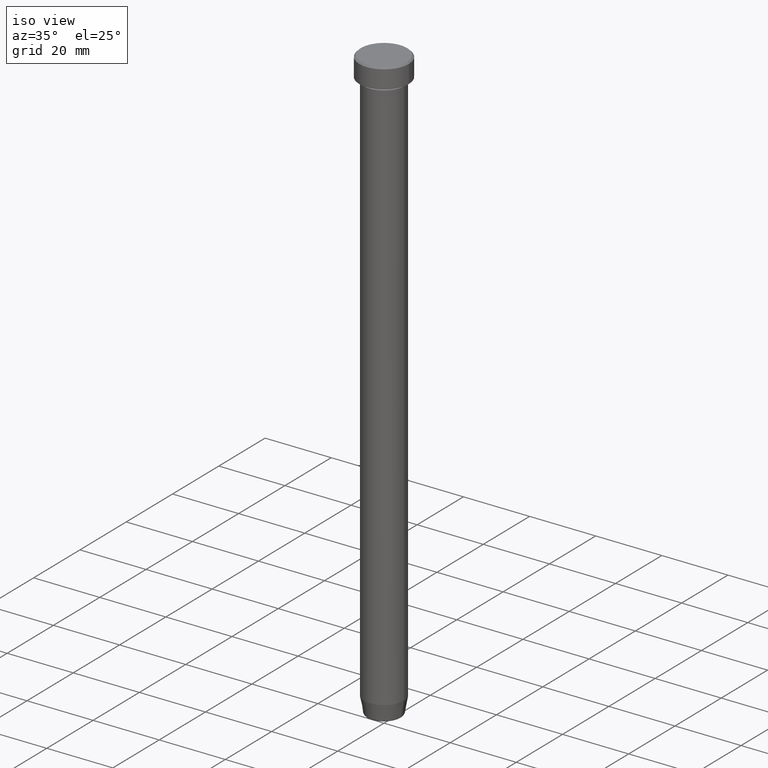
[diagram: clean part render]
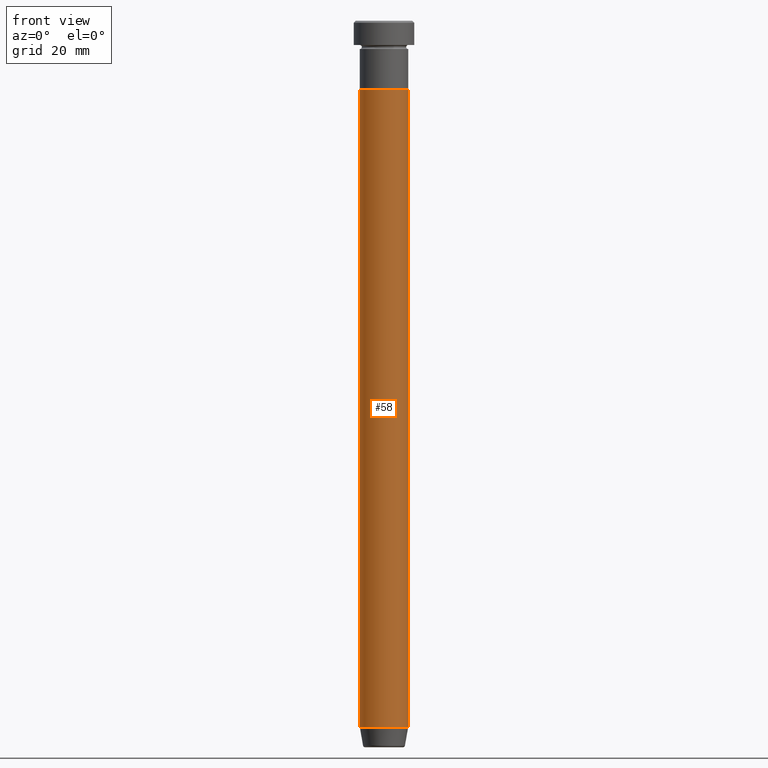
[diagram: tour spotlight — one face highlighted and labeled with its STEP entity id]
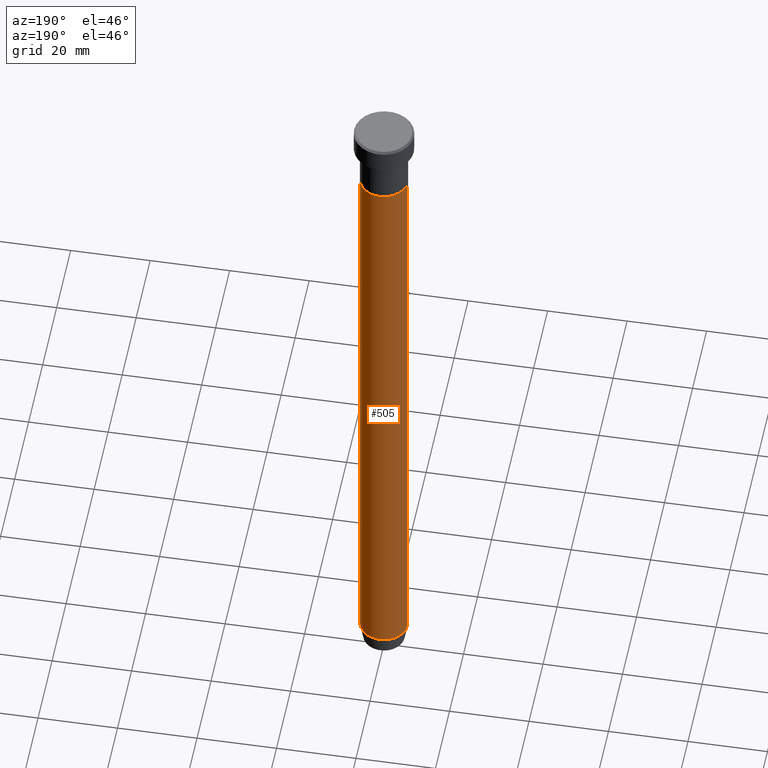
[diagram: tour spotlight — one face highlighted and labeled with its STEP entity id]
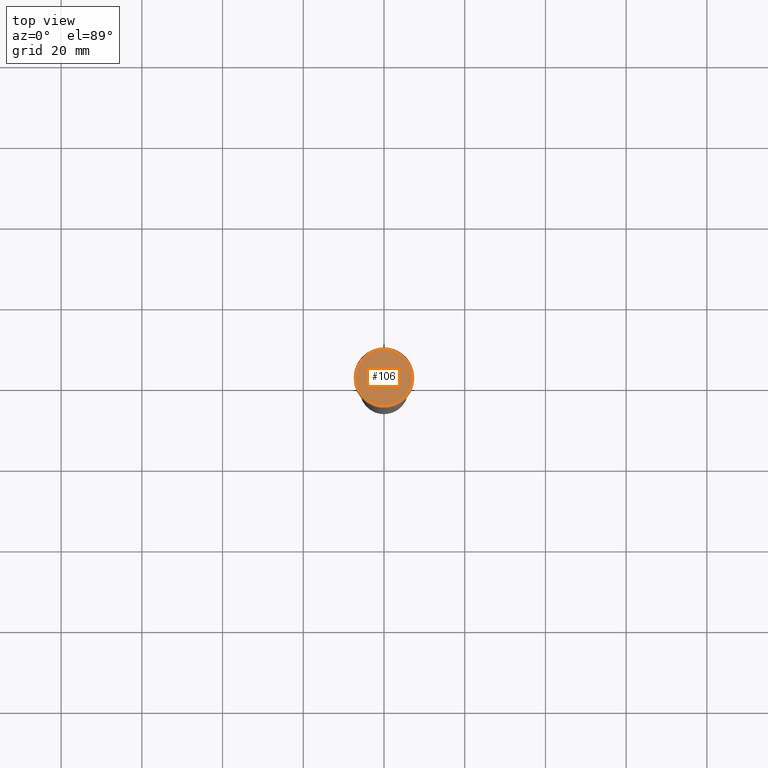
[diagram: tour spotlight — one face highlighted and labeled with its STEP entity id]
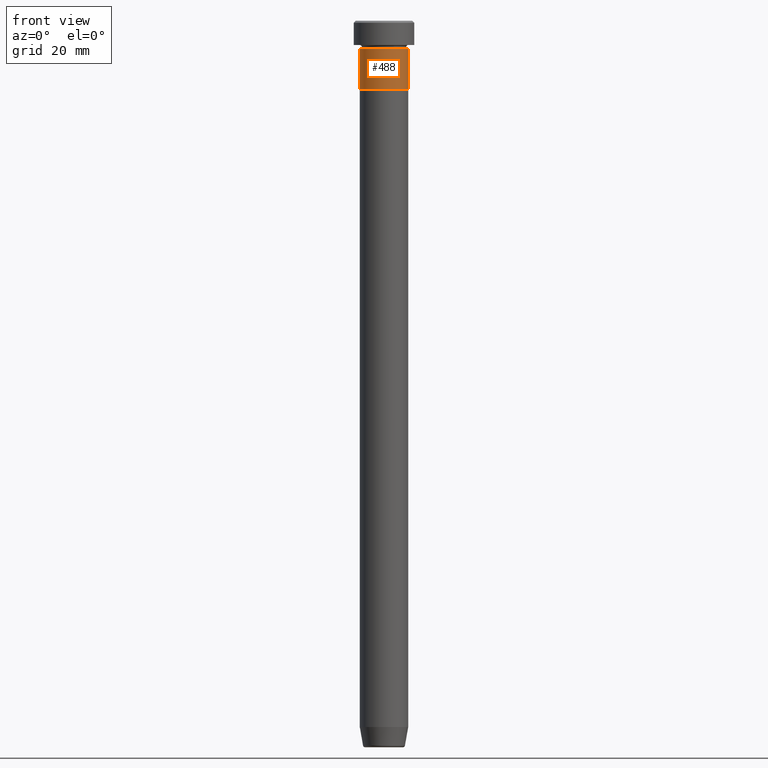
[diagram: tour spotlight — one face highlighted and labeled with its STEP entity id]
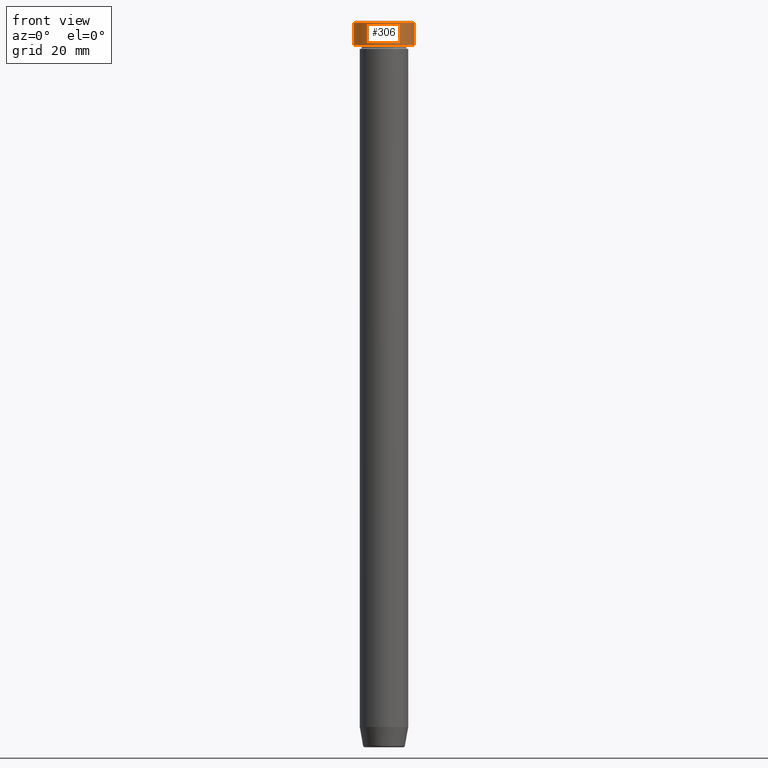
[diagram: tour spotlight — one face highlighted and labeled with its STEP entity id]
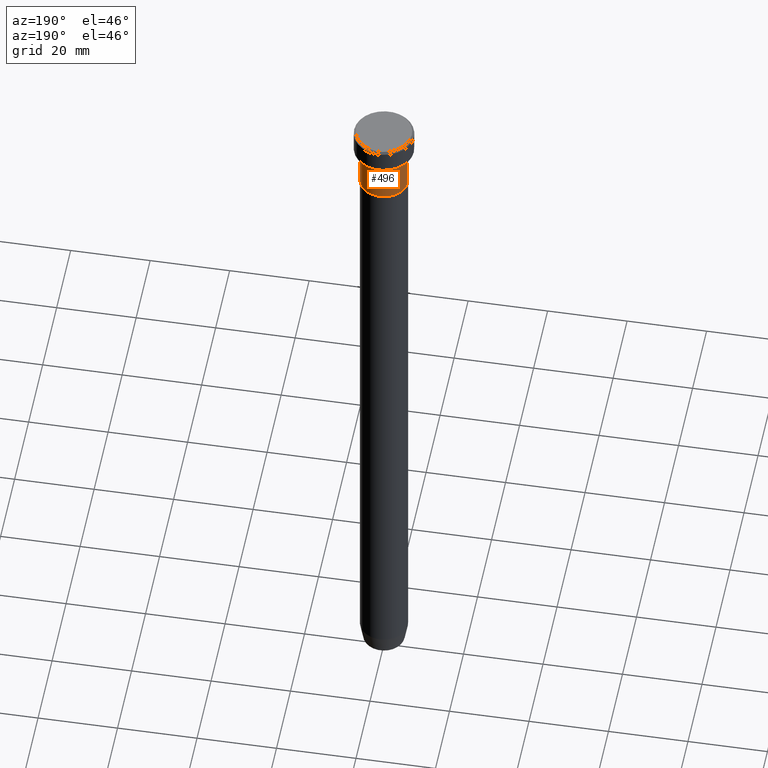
[diagram: tour spotlight — one face highlighted and labeled with its STEP entity id]
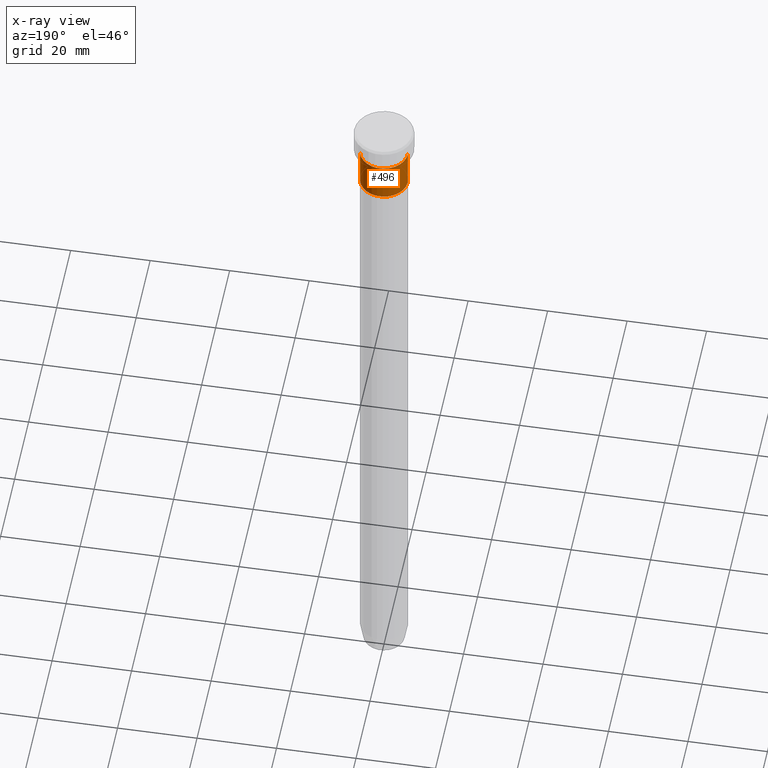
[diagram: x-ray of the same camera — body ghosted, this tour face saturated]
A machine part: a face-by-face anatomy tour. The part has 21 B-rep faces; the first image is the clean iso view, then the 6 largest visible faces are spotlighted one at a time (largest first), each with its STEP entity span.

Face 1 — front view, entity #58. In plain terms, the highlighted cylindrical surface (edge-blend (fillet) strip) has radius 6 mm, axis along (-0, -0, 1).
Definition (entity closure, byte-faithful):
#24 = LINE ( 'NONE', #316, #136 ) ;
#27 = VERTEX_POINT ( 'NONE', #234 ) ;
#48 = VERTEX_POINT ( 'NONE', #383 ) ;
#58 = ADVANCED_FACE ( 'NONE', ( #466 ), #431, .T. ) ;
#62 = ORIENTED_EDGE ( 'NONE', *, *, #112, .F. ) ;
#82 = ORIENTED_EDGE ( 'NONE', *, *, #474, .F. ) ;
#87 = CARTESIAN_POINT ( 'NONE',  ( 6.000000000000000000, 0.000000000000000000, 0.000000000000000000 ) ) ;
#112 = EDGE_CURVE ( 'NONE', #393, #48, #24, .T. ) ;
#123 = DIRECTION ( 'NONE',  ( 1.000000000000000000, 0.000000000000000000, 0.000000000000000000 ) ) ;
#129 = CARTESIAN_POINT ( 'NONE',  ( -6.000000000000000000, 7.347880794884119736E-16, -175.0000000000000000 ) ) ;
#135 = DIRECTION ( 'NONE',  ( -0.000000000000000000, -0.000000000000000000, 1.000000000000000000 ) ) ;
#136 = VECTOR ( 'NONE', #265, 1000.000000000000000 ) ;
#153 = AXIS2_PLACEMENT_3D ( 'NONE', #560, #193, #550 ) ;
#161 = CARTESIAN_POINT ( 'NONE',  ( 0.000000000000000000, 0.000000000000000000, -17.00000000000000000 ) ) ;
#193 = DIRECTION ( 'NONE',  ( -0.000000000000000000, -0.000000000000000000, 1.000000000000000000 ) ) ;
#204 = DIRECTION ( 'NONE',  ( -0.000000000000000000, -0.000000000000000000, 1.000000000000000000 ) ) ;
#233 = CARTESIAN_POINT ( 'NONE',  ( 6.000000000000000000, 0.000000000000000000, -17.00000000000000000 ) ) ;
#234 = CARTESIAN_POINT ( 'NONE',  ( 6.000000000000000000, 0.000000000000000000, -175.0000000000000000 ) ) ;
#265 = DIRECTION ( 'NONE',  ( -0.000000000000000000, -0.000000000000000000, 1.000000000000000000 ) ) ;
#308 = EDGE_LOOP ( 'NONE', ( #62, #323, #369, #82 ) ) ;
#316 = CARTESIAN_POINT ( 'NONE',  ( -6.000000000000000000, 7.347880794884119736E-16, 0.000000000000000000 ) ) ;
#323 = ORIENTED_EDGE ( 'NONE', *, *, #346, .T. ) ;
#324 = VERTEX_POINT ( 'NONE', #233 ) ;
#346 = EDGE_CURVE ( 'NONE', #393, #27, #531, .T. ) ;
#364 = DIRECTION ( 'NONE',  ( 1.000000000000000000, 0.000000000000000000, 0.000000000000000000 ) ) ;
#369 = ORIENTED_EDGE ( 'NONE', *, *, #371, .T. ) ;
#371 = EDGE_CURVE ( 'NONE', #27, #324, #454, .T. ) ;
#383 = CARTESIAN_POINT ( 'NONE',  ( -6.000000000000000000, 7.347880794884119736E-16, -17.00000000000000000 ) ) ;
#393 = VERTEX_POINT ( 'NONE', #129 ) ;
#403 = AXIS2_PLACEMENT_3D ( 'NONE', #161, #204, #123 ) ;
#413 = DIRECTION ( 'NONE',  ( -0.000000000000000000, -0.000000000000000000, 1.000000000000000000 ) ) ;
#426 = VECTOR ( 'NONE', #413, 1000.000000000000000 ) ;
#431 = CYLINDRICAL_SURFACE ( 'NONE', #153, 6.000000000000000000 ) ;
#440 = AXIS2_PLACEMENT_3D ( 'NONE', #495, #135, #364 ) ;
#454 = LINE ( 'NONE', #87, #426 ) ;
#466 = FACE_OUTER_BOUND ( 'NONE', #308, .T. ) ;
#474 = EDGE_CURVE ( 'NONE', #48, #324, #577, .T. ) ;
#495 = CARTESIAN_POINT ( 'NONE',  ( 0.000000000000000000, 0.000000000000000000, -175.0000000000000000 ) ) ;
#531 = CIRCLE ( 'NONE', #440, 6.000000000000000000 ) ;
#550 = DIRECTION ( 'NONE',  ( 1.000000000000000000, 0.000000000000000000, 0.000000000000000000 ) ) ;
#560 = CARTESIAN_POINT ( 'NONE',  ( 0.000000000000000000, 0.000000000000000000, 0.000000000000000000 ) ) ;
#577 = CIRCLE ( 'NONE', #403, 6.000000000000000000 ) ;

Face 2 — auxiliary view, entity #505. In plain terms, the highlighted cylindrical surface (edge-blend (fillet) strip) has radius 6 mm, axis along (-0, -0, 1).
Definition (entity closure, byte-faithful):
#24 = LINE ( 'NONE', #316, #136 ) ;
#27 = VERTEX_POINT ( 'NONE', #234 ) ;
#48 = VERTEX_POINT ( 'NONE', #383 ) ;
#77 = DIRECTION ( 'NONE',  ( 1.000000000000000000, 0.000000000000000000, 0.000000000000000000 ) ) ;
#87 = CARTESIAN_POINT ( 'NONE',  ( 6.000000000000000000, 0.000000000000000000, 0.000000000000000000 ) ) ;
#112 = EDGE_CURVE ( 'NONE', #393, #48, #24, .T. ) ;
#129 = CARTESIAN_POINT ( 'NONE',  ( -6.000000000000000000, 7.347880794884119736E-16, -175.0000000000000000 ) ) ;
#136 = VECTOR ( 'NONE', #265, 1000.000000000000000 ) ;
#140 = EDGE_CURVE ( 'NONE', #324, #48, #529, .T. ) ;
#199 = AXIS2_PLACEMENT_3D ( 'NONE', #354, #537, #520 ) ;
#201 = ORIENTED_EDGE ( 'NONE', *, *, #371, .F. ) ;
#233 = CARTESIAN_POINT ( 'NONE',  ( 6.000000000000000000, 0.000000000000000000, -17.00000000000000000 ) ) ;
#234 = CARTESIAN_POINT ( 'NONE',  ( 6.000000000000000000, 0.000000000000000000, -175.0000000000000000 ) ) ;
#236 = DIRECTION ( 'NONE',  ( 1.000000000000000000, 0.000000000000000000, 0.000000000000000000 ) ) ;
#265 = DIRECTION ( 'NONE',  ( -0.000000000000000000, -0.000000000000000000, 1.000000000000000000 ) ) ;
#304 = AXIS2_PLACEMENT_3D ( 'NONE', #391, #569, #77 ) ;
#316 = CARTESIAN_POINT ( 'NONE',  ( -6.000000000000000000, 7.347880794884119736E-16, 0.000000000000000000 ) ) ;
#324 = VERTEX_POINT ( 'NONE', #233 ) ;
#330 = EDGE_LOOP ( 'NONE', ( #390, #498, #497, #201 ) ) ;
#332 = DIRECTION ( 'NONE',  ( -0.000000000000000000, -0.000000000000000000, 1.000000000000000000 ) ) ;
#352 = EDGE_CURVE ( 'NONE', #27, #393, #355, .T. ) ;
#354 = CARTESIAN_POINT ( 'NONE',  ( 0.000000000000000000, 0.000000000000000000, -17.00000000000000000 ) ) ;
#355 = CIRCLE ( 'NONE', #523, 6.000000000000000000 ) ;
#358 = CYLINDRICAL_SURFACE ( 'NONE', #304, 6.000000000000000000 ) ;
#371 = EDGE_CURVE ( 'NONE', #27, #324, #454, .T. ) ;
#383 = CARTESIAN_POINT ( 'NONE',  ( -6.000000000000000000, 7.347880794884119736E-16, -17.00000000000000000 ) ) ;
#390 = ORIENTED_EDGE ( 'NONE', *, *, #352, .T. ) ;
#391 = CARTESIAN_POINT ( 'NONE',  ( 0.000000000000000000, 0.000000000000000000, 0.000000000000000000 ) ) ;
#393 = VERTEX_POINT ( 'NONE', #129 ) ;
#413 = DIRECTION ( 'NONE',  ( -0.000000000000000000, -0.000000000000000000, 1.000000000000000000 ) ) ;
#426 = VECTOR ( 'NONE', #413, 1000.000000000000000 ) ;
#454 = LINE ( 'NONE', #87, #426 ) ;
#465 = CARTESIAN_POINT ( 'NONE',  ( 0.000000000000000000, 0.000000000000000000, -175.0000000000000000 ) ) ;
#497 = ORIENTED_EDGE ( 'NONE', *, *, #140, .F. ) ;
#498 = ORIENTED_EDGE ( 'NONE', *, *, #112, .T. ) ;
#505 = ADVANCED_FACE ( 'NONE', ( #582 ), #358, .T. ) ;
#520 = DIRECTION ( 'NONE',  ( 1.000000000000000000, 0.000000000000000000, 0.000000000000000000 ) ) ;
#523 = AXIS2_PLACEMENT_3D ( 'NONE', #465, #332, #236 ) ;
#529 = CIRCLE ( 'NONE', #199, 6.000000000000000000 ) ;
#537 = DIRECTION ( 'NONE',  ( -0.000000000000000000, -0.000000000000000000, 1.000000000000000000 ) ) ;
#569 = DIRECTION ( 'NONE',  ( -0.000000000000000000, -0.000000000000000000, 1.000000000000000000 ) ) ;
#582 = FACE_OUTER_BOUND ( 'NONE', #330, .T. ) ;

Face 3 — top view, entity #106. In plain terms, the highlighted planar face has unit normal (0, -0, 1).
Definition (entity closure, byte-faithful):
#13 = DIRECTION ( 'NONE',  ( 0.000000000000000000, -0.000000000000000000, 1.000000000000000000 ) ) ;
#21 = CARTESIAN_POINT ( 'NONE',  ( 0.000000000000000000, 0.000000000000000000, 0.000000000000000000 ) ) ;
#73 = DIRECTION ( 'NONE',  ( -0.000000000000000000, -0.000000000000000000, 1.000000000000000000 ) ) ;
#75 = AXIS2_PLACEMENT_3D ( 'NONE', #21, #481, #446 ) ;
#79 = CIRCLE ( 'NONE', #482, 7.000000000000001776 ) ;
#106 = ADVANCED_FACE ( 'NONE', ( #162 ), #435, .T. ) ;
#116 = DIRECTION ( 'NONE',  ( 1.000000000000000000, 0.000000000000000000, 0.000000000000000000 ) ) ;
#132 = VERTEX_POINT ( 'NONE', #492 ) ;
#158 = CARTESIAN_POINT ( 'NONE',  ( 7.000000000000001776, 8.878689293818310074E-16, 0.000000000000000000 ) ) ;
#162 = FACE_OUTER_BOUND ( 'NONE', #349, .T. ) ;
#202 = ORIENTED_EDGE ( 'NONE', *, *, #515, .T. ) ;
#205 = CARTESIAN_POINT ( 'NONE',  ( 0.000000000000000000, 0.000000000000000000, 0.000000000000000000 ) ) ;
#248 = CIRCLE ( 'NONE', #75, 7.000000000000001776 ) ;
#264 = DIRECTION ( 'NONE',  ( 1.000000000000000000, 0.000000000000000000, 0.000000000000000000 ) ) ;
#317 = AXIS2_PLACEMENT_3D ( 'NONE', #205, #13, #116 ) ;
#349 = EDGE_LOOP ( 'NONE', ( #412, #202 ) ) ;
#412 = ORIENTED_EDGE ( 'NONE', *, *, #455, .T. ) ;
#435 = PLANE ( 'NONE',  #317 ) ;
#446 = DIRECTION ( 'NONE',  ( 1.000000000000000000, 0.000000000000000000, 0.000000000000000000 ) ) ;
#455 = EDGE_CURVE ( 'NONE', #132, #544, #248, .T. ) ;
#481 = DIRECTION ( 'NONE',  ( -0.000000000000000000, -0.000000000000000000, 1.000000000000000000 ) ) ;
#482 = AXIS2_PLACEMENT_3D ( 'NONE', #526, #73, #264 ) ;
#492 = CARTESIAN_POINT ( 'NONE',  ( -7.000000000000001776, 0.000000000000000000, 0.000000000000000000 ) ) ;
#515 = EDGE_CURVE ( 'NONE', #544, #132, #79, .T. ) ;
#526 = CARTESIAN_POINT ( 'NONE',  ( 0.000000000000000000, 0.000000000000000000, 0.000000000000000000 ) ) ;
#544 = VERTEX_POINT ( 'NONE', #158 ) ;

Face 4 — front view, entity #488. In plain terms, the highlighted cylindrical surface (edge-blend (fillet) strip) has radius 6 mm, axis along (-0, -0, 1).
Definition (entity closure, byte-faithful):
#3 = LINE ( 'NONE', #230, #365 ) ;
#11 = CIRCLE ( 'NONE', #522, 6.000000000000000000 ) ;
#18 = DIRECTION ( 'NONE',  ( -0.000000000000000000, -0.000000000000000000, 1.000000000000000000 ) ) ;
#56 = LINE ( 'NONE', #64, #469 ) ;
#64 = CARTESIAN_POINT ( 'NONE',  ( -6.000000000000000000, 7.347880794884119736E-16, 0.000000000000000000 ) ) ;
#74 = EDGE_CURVE ( 'NONE', #479, #217, #11, .T. ) ;
#78 = CARTESIAN_POINT ( 'NONE',  ( 0.000000000000000000, 0.000000000000000000, -17.00000000000000000 ) ) ;
#84 = EDGE_CURVE ( 'NONE', #366, #479, #56, .T. ) ;
#97 = DIRECTION ( 'NONE',  ( -0.000000000000000000, -0.000000000000000000, 1.000000000000000000 ) ) ;
#99 = DIRECTION ( 'NONE',  ( 1.000000000000000000, 0.000000000000000000, 0.000000000000000000 ) ) ;
#111 = FACE_OUTER_BOUND ( 'NONE', #521, .T. ) ;
#130 = EDGE_CURVE ( 'NONE', #366, #586, #331, .T. ) ;
#152 = DIRECTION ( 'NONE',  ( 1.000000000000000000, 0.000000000000000000, 0.000000000000000000 ) ) ;
#189 = CARTESIAN_POINT ( 'NONE',  ( 0.000000000000000000, 0.000000000000000000, -7.000000000000000000 ) ) ;
#195 = DIRECTION ( 'NONE',  ( -0.000000000000000000, -0.000000000000000000, 1.000000000000000000 ) ) ;
#217 = VERTEX_POINT ( 'NONE', #448 ) ;
#218 = CARTESIAN_POINT ( 'NONE',  ( 6.000000000000000000, 0.000000000000000000, -17.00000000000000000 ) ) ;
#230 = CARTESIAN_POINT ( 'NONE',  ( 6.000000000000000000, 0.000000000000000000, 0.000000000000000000 ) ) ;
#278 = ORIENTED_EDGE ( 'NONE', *, *, #292, .T. ) ;
#280 = ORIENTED_EDGE ( 'NONE', *, *, #130, .T. ) ;
#292 = EDGE_CURVE ( 'NONE', #586, #217, #3, .T. ) ;
#309 = CYLINDRICAL_SURFACE ( 'NONE', #557, 6.000000000000000000 ) ;
#331 = CIRCLE ( 'NONE', #593, 6.000000000000000000 ) ;
#350 = DIRECTION ( 'NONE',  ( 1.000000000000000000, 0.000000000000000000, 0.000000000000000000 ) ) ;
#365 = VECTOR ( 'NONE', #97, 1000.000000000000000 ) ;
#366 = VERTEX_POINT ( 'NONE', #541 ) ;
#448 = CARTESIAN_POINT ( 'NONE',  ( 6.000000000000000000, 0.000000000000000000, -7.000000000000000000 ) ) ;
#457 = ORIENTED_EDGE ( 'NONE', *, *, #84, .F. ) ;
#469 = VECTOR ( 'NONE', #195, 1000.000000000000000 ) ;
#479 = VERTEX_POINT ( 'NONE', #576 ) ;
#488 = ADVANCED_FACE ( 'NONE', ( #111 ), #309, .T. ) ;
#508 = DIRECTION ( 'NONE',  ( -0.000000000000000000, -0.000000000000000000, 1.000000000000000000 ) ) ;
#521 = EDGE_LOOP ( 'NONE', ( #457, #280, #278, #575 ) ) ;
#522 = AXIS2_PLACEMENT_3D ( 'NONE', #189, #508, #99 ) ;
#527 = CARTESIAN_POINT ( 'NONE',  ( 0.000000000000000000, 0.000000000000000000, 0.000000000000000000 ) ) ;
#533 = DIRECTION ( 'NONE',  ( -0.000000000000000000, -0.000000000000000000, 1.000000000000000000 ) ) ;
#541 = CARTESIAN_POINT ( 'NONE',  ( -6.000000000000000000, 7.347880794884119736E-16, -17.00000000000000000 ) ) ;
#557 = AXIS2_PLACEMENT_3D ( 'NONE', #527, #18, #350 ) ;
#575 = ORIENTED_EDGE ( 'NONE', *, *, #74, .F. ) ;
#576 = CARTESIAN_POINT ( 'NONE',  ( -6.000000000000000000, 7.347880794884119736E-16, -7.000000000000000000 ) ) ;
#586 = VERTEX_POINT ( 'NONE', #218 ) ;
#593 = AXIS2_PLACEMENT_3D ( 'NONE', #78, #533, #152 ) ;

Face 5 — front view, entity #306. In plain terms, the highlighted cylindrical surface (edge-blend (fillet) strip) has radius 7.5 mm, axis along (-0, -0, 1).
Definition (entity closure, byte-faithful):
#44 = AXIS2_PLACEMENT_3D ( 'NONE', #434, #471, #150 ) ;
#66 = VERTEX_POINT ( 'NONE', #137 ) ;
#71 = CARTESIAN_POINT ( 'NONE',  ( 0.000000000000000000, 0.000000000000000000, -0.4999999999999987232 ) ) ;
#88 = EDGE_LOOP ( 'NONE', ( #539, #235, #172, #173 ) ) ;
#109 = DIRECTION ( 'NONE',  ( -0.000000000000000000, -0.000000000000000000, 1.000000000000000000 ) ) ;
#137 = CARTESIAN_POINT ( 'NONE',  ( -7.500000000000000000, 9.184850993605147944E-16, -0.4999999999999987232 ) ) ;
#150 = DIRECTION ( 'NONE',  ( 1.000000000000000000, 0.000000000000000000, 0.000000000000000000 ) ) ;
#166 = CARTESIAN_POINT ( 'NONE',  ( -7.500000000000000000, 9.184850993605147944E-16, 0.000000000000000000 ) ) ;
#172 = ORIENTED_EDGE ( 'NONE', *, *, #483, .T. ) ;
#173 = ORIENTED_EDGE ( 'NONE', *, *, #433, .T. ) ;
#187 = CIRCLE ( 'NONE', #392, 7.500000000000000000 ) ;
#208 = CARTESIAN_POINT ( 'NONE',  ( 7.500000000000000000, 0.000000000000000000, -6.000000000000000000 ) ) ;
#232 = CARTESIAN_POINT ( 'NONE',  ( -7.500000000000000000, 9.184850993605147944E-16, -6.000000000000000000 ) ) ;
#235 = ORIENTED_EDGE ( 'NONE', *, *, #407, .T. ) ;
#237 = EDGE_CURVE ( 'NONE', #567, #66, #386, .T. ) ;
#261 = DIRECTION ( 'NONE',  ( 1.000000000000000000, 0.000000000000000000, 0.000000000000000000 ) ) ;
#267 = DIRECTION ( 'NONE',  ( 0.000000000000000000, 0.000000000000000000, -1.000000000000000000 ) ) ;
#281 = CIRCLE ( 'NONE', #44, 7.500000000000000000 ) ;
#305 = LINE ( 'NONE', #571, #348 ) ;
#306 = ADVANCED_FACE ( 'NONE', ( #370 ), #462, .T. ) ;
#312 = CARTESIAN_POINT ( 'NONE',  ( 7.500000000000000000, 0.000000000000000000, -0.4999999999999987232 ) ) ;
#348 = VECTOR ( 'NONE', #436, 1000.000000000000000 ) ;
#370 = FACE_OUTER_BOUND ( 'NONE', #88, .T. ) ;
#377 = DIRECTION ( 'NONE',  ( 1.000000000000000000, 0.000000000000000000, 0.000000000000000000 ) ) ;
#386 = LINE ( 'NONE', #166, #459 ) ;
#392 = AXIS2_PLACEMENT_3D ( 'NONE', #71, #267, #261 ) ;
#407 = EDGE_CURVE ( 'NONE', #567, #452, #281, .T. ) ;
#433 = EDGE_CURVE ( 'NONE', #538, #66, #187, .T. ) ;
#434 = CARTESIAN_POINT ( 'NONE',  ( 0.000000000000000000, 0.000000000000000000, -6.000000000000000000 ) ) ;
#436 = DIRECTION ( 'NONE',  ( -0.000000000000000000, -0.000000000000000000, 1.000000000000000000 ) ) ;
#452 = VERTEX_POINT ( 'NONE', #208 ) ;
#459 = VECTOR ( 'NONE', #109, 1000.000000000000000 ) ;
#462 = CYLINDRICAL_SURFACE ( 'NONE', #512, 7.500000000000000000 ) ;
#471 = DIRECTION ( 'NONE',  ( -0.000000000000000000, -0.000000000000000000, 1.000000000000000000 ) ) ;
#483 = EDGE_CURVE ( 'NONE', #452, #538, #305, .T. ) ;
#512 = AXIS2_PLACEMENT_3D ( 'NONE', #589, #548, #377 ) ;
#538 = VERTEX_POINT ( 'NONE', #312 ) ;
#539 = ORIENTED_EDGE ( 'NONE', *, *, #237, .F. ) ;
#548 = DIRECTION ( 'NONE',  ( -0.000000000000000000, -0.000000000000000000, 1.000000000000000000 ) ) ;
#567 = VERTEX_POINT ( 'NONE', #232 ) ;
#571 = CARTESIAN_POINT ( 'NONE',  ( 7.500000000000000000, 0.000000000000000000, 0.000000000000000000 ) ) ;
#589 = CARTESIAN_POINT ( 'NONE',  ( 0.000000000000000000, 0.000000000000000000, 0.000000000000000000 ) ) ;

Face 6 — auxiliary view, entity #496. An x-ray twin of the same camera follows (body ghosted, this face saturated) — the face is partly hidden behind the body. In plain terms, the highlighted cylindrical surface (edge-blend (fillet) strip) has radius 6 mm, axis along (-0, -0, 1).
Definition (entity closure, byte-faithful):
#1 = DIRECTION ( 'NONE',  ( -0.000000000000000000, -0.000000000000000000, 1.000000000000000000 ) ) ;
#3 = LINE ( 'NONE', #230, #365 ) ;
#7 = EDGE_CURVE ( 'NONE', #586, #366, #269, .T. ) ;
#20 = EDGE_LOOP ( 'NONE', ( #463, #416, #595, #207 ) ) ;
#25 = CYLINDRICAL_SURFACE ( 'NONE', #313, 6.000000000000000000 ) ;
#56 = LINE ( 'NONE', #64, #469 ) ;
#64 = CARTESIAN_POINT ( 'NONE',  ( -6.000000000000000000, 7.347880794884119736E-16, 0.000000000000000000 ) ) ;
#84 = EDGE_CURVE ( 'NONE', #366, #479, #56, .T. ) ;
#97 = DIRECTION ( 'NONE',  ( -0.000000000000000000, -0.000000000000000000, 1.000000000000000000 ) ) ;
#195 = DIRECTION ( 'NONE',  ( -0.000000000000000000, -0.000000000000000000, 1.000000000000000000 ) ) ;
#198 = DIRECTION ( 'NONE',  ( -0.000000000000000000, -0.000000000000000000, 1.000000000000000000 ) ) ;
#207 = ORIENTED_EDGE ( 'NONE', *, *, #292, .F. ) ;
#217 = VERTEX_POINT ( 'NONE', #448 ) ;
#218 = CARTESIAN_POINT ( 'NONE',  ( 6.000000000000000000, 0.000000000000000000, -17.00000000000000000 ) ) ;
#226 = DIRECTION ( 'NONE',  ( -0.000000000000000000, -0.000000000000000000, 1.000000000000000000 ) ) ;
#230 = CARTESIAN_POINT ( 'NONE',  ( 6.000000000000000000, 0.000000000000000000, 0.000000000000000000 ) ) ;
#269 = CIRCLE ( 'NONE', #476, 6.000000000000000000 ) ;
#287 = EDGE_CURVE ( 'NONE', #217, #479, #561, .T. ) ;
#292 = EDGE_CURVE ( 'NONE', #586, #217, #3, .T. ) ;
#313 = AXIS2_PLACEMENT_3D ( 'NONE', #395, #198, #405 ) ;
#347 = AXIS2_PLACEMENT_3D ( 'NONE', #418, #1, #424 ) ;
#361 = CARTESIAN_POINT ( 'NONE',  ( 0.000000000000000000, 0.000000000000000000, -17.00000000000000000 ) ) ;
#365 = VECTOR ( 'NONE', #97, 1000.000000000000000 ) ;
#366 = VERTEX_POINT ( 'NONE', #541 ) ;
#395 = CARTESIAN_POINT ( 'NONE',  ( 0.000000000000000000, 0.000000000000000000, 0.000000000000000000 ) ) ;
#397 = FACE_OUTER_BOUND ( 'NONE', #20, .T. ) ;
#405 = DIRECTION ( 'NONE',  ( 1.000000000000000000, 0.000000000000000000, 0.000000000000000000 ) ) ;
#414 = DIRECTION ( 'NONE',  ( 1.000000000000000000, 0.000000000000000000, 0.000000000000000000 ) ) ;
#416 = ORIENTED_EDGE ( 'NONE', *, *, #84, .T. ) ;
#418 = CARTESIAN_POINT ( 'NONE',  ( 0.000000000000000000, 0.000000000000000000, -7.000000000000000000 ) ) ;
#424 = DIRECTION ( 'NONE',  ( 1.000000000000000000, 0.000000000000000000, 0.000000000000000000 ) ) ;
#448 = CARTESIAN_POINT ( 'NONE',  ( 6.000000000000000000, 0.000000000000000000, -7.000000000000000000 ) ) ;
#463 = ORIENTED_EDGE ( 'NONE', *, *, #7, .T. ) ;
#469 = VECTOR ( 'NONE', #195, 1000.000000000000000 ) ;
#476 = AXIS2_PLACEMENT_3D ( 'NONE', #361, #226, #414 ) ;
#479 = VERTEX_POINT ( 'NONE', #576 ) ;
#496 = ADVANCED_FACE ( 'NONE', ( #397 ), #25, .T. ) ;
#541 = CARTESIAN_POINT ( 'NONE',  ( -6.000000000000000000, 7.347880794884119736E-16, -17.00000000000000000 ) ) ;
#561 = CIRCLE ( 'NONE', #347, 6.000000000000000000 ) ;
#576 = CARTESIAN_POINT ( 'NONE',  ( -6.000000000000000000, 7.347880794884119736E-16, -7.000000000000000000 ) ) ;
#586 = VERTEX_POINT ( 'NONE', #218 ) ;
#595 = ORIENTED_EDGE ( 'NONE', *, *, #287, .F. ) ;